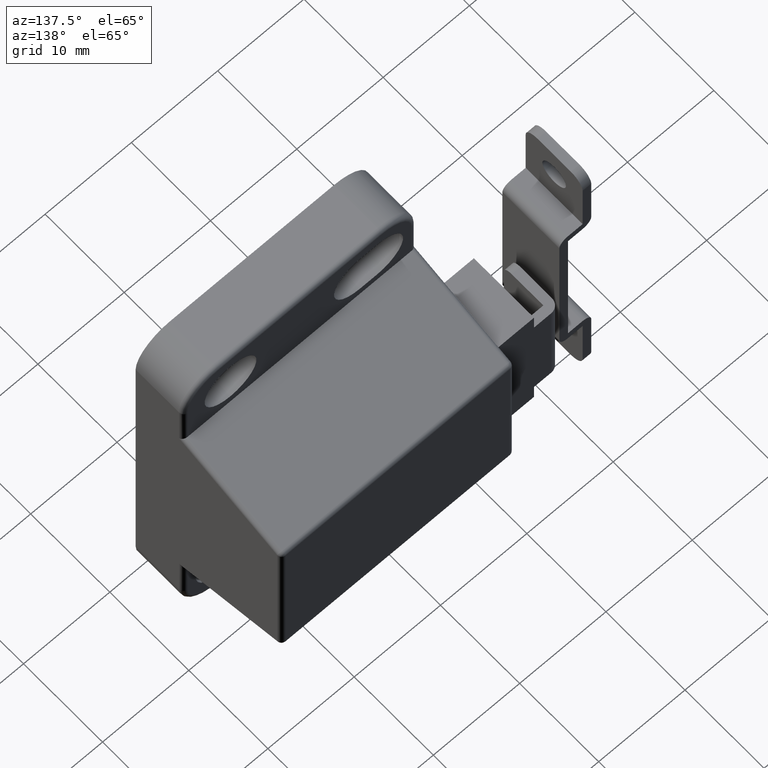
[diagram: clean part render]
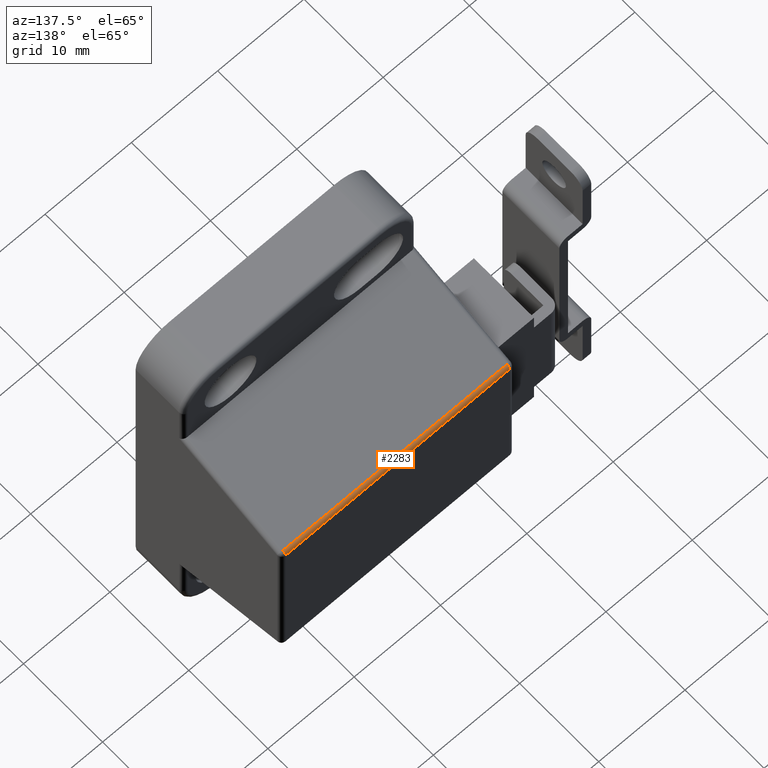
[diagram: same view with one face highlighted and labeled with its STEP entity id]
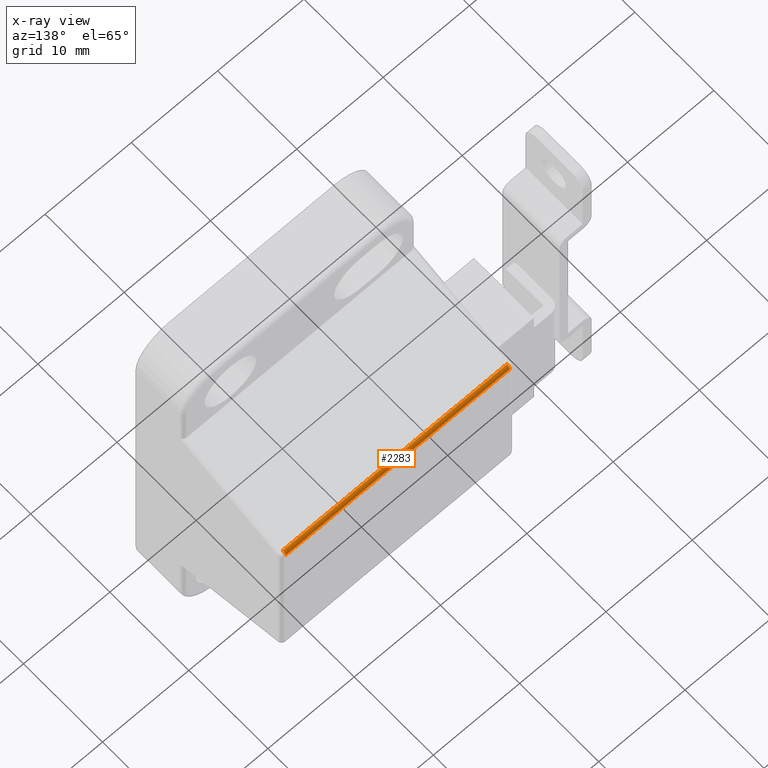
[diagram: x-ray of the same camera — body ghosted, the highlighted face saturated]
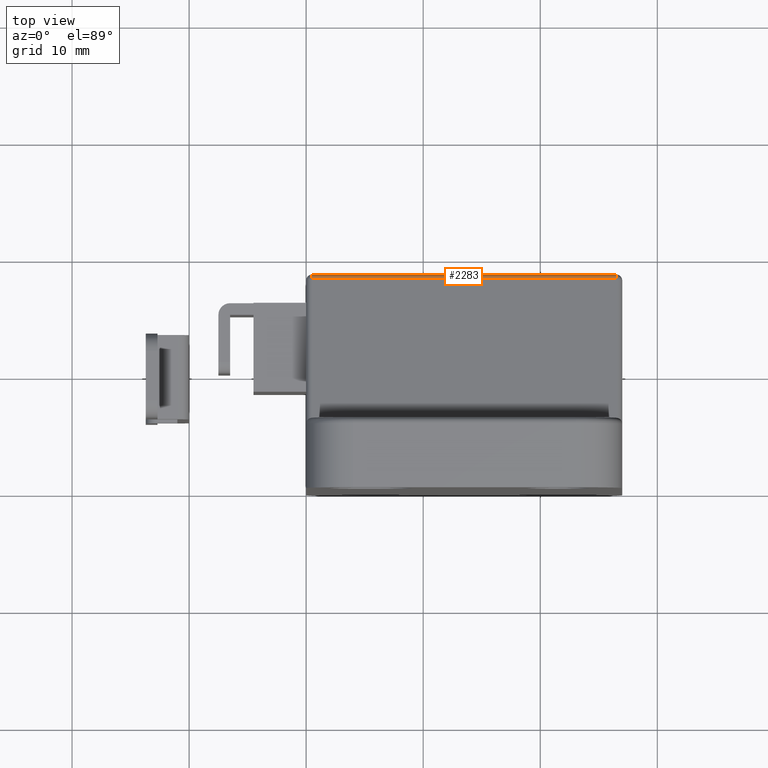
[diagram: same view with one face highlighted and labeled with its STEP entity id]
A machine part, auxiliary view. The second image highlights one B-rep face of the part: STEP entity #2283.
The next image is the same camera in x-ray: the body ghosted, the highlighted face saturated — about 0% of this face is hidden behind the body in this view.
A second angle (top view) of the same face is appended — the face is thin or edge-on in the first view.
In plain terms, the highlighted cylindrical surface (edge-blend (fillet) strip) has radius 0.5 mm, axis along (1, 0, 0).
Its self-contained STEP definition (entity closure, byte-faithful):
#192=LINE('',#3468,#419);
#193=LINE('',#3469,#420);
#419=VECTOR('',#2761,26.);
#420=VECTOR('',#2762,26.);
#636=CYLINDRICAL_SURFACE('',#2451,0.5);
#691=FACE_OUTER_BOUND('',#829,.T.);
#829=EDGE_LOOP('',(#1673,#1674,#1675,#1676));
#982=CIRCLE('',#2414,0.499999999999998);
#983=CIRCLE('',#2418,0.5);
#1075=VERTEX_POINT('',#3381);
#1076=VERTEX_POINT('',#3383);
#1079=VERTEX_POINT('',#3393);
#1080=VERTEX_POINT('',#3394);
#1290=EDGE_CURVE('',#1075,#1076,#982,.F.);
#1294=EDGE_CURVE('',#1079,#1080,#983,.F.);
#1332=EDGE_CURVE('',#1080,#1075,#192,.T.);
#1333=EDGE_CURVE('',#1076,#1079,#193,.T.);
#1673=ORIENTED_EDGE('',*,*,#1294,.T.);
#1674=ORIENTED_EDGE('',*,*,#1332,.T.);
#1675=ORIENTED_EDGE('',*,*,#1290,.T.);
#1676=ORIENTED_EDGE('',*,*,#1333,.T.);
#2283=ADVANCED_FACE('',(#691),#636,.T.);
#2414=AXIS2_PLACEMENT_3D('',#3385,#2665,#2666);
#2418=AXIS2_PLACEMENT_3D('',#3395,#2675,#2676);
#2451=AXIS2_PLACEMENT_3D('',#3467,#2759,#2760);
#2665=DIRECTION('center_axis',(0.,0.,1.));
#2666=DIRECTION('ref_axis',(0.,1.,0.));
#2675=DIRECTION('center_axis',(2.86509167645202E-15,-8.88178419700128E-15,
-1.));
#2676=DIRECTION('ref_axis',(0.951708617760551,0.307002779922758,-1.97215226305253E-30));
#2759=DIRECTION('center_axis',(0.,0.,-1.));
#2760=DIRECTION('ref_axis',(0.588641325459421,0.808394328259035,0.));
#2761=DIRECTION('',(0.,0.,1.));
#2762=DIRECTION('',(0.,0.,-1.));
#3381=CARTESIAN_POINT('',(8.63591943629348,18.4,-0.5));
#3383=CARTESIAN_POINT('',(9.11177374517376,18.0535013899614,-0.5));
#3385=CARTESIAN_POINT('Origin',(8.63591943629348,17.9,-0.5));
#3393=CARTESIAN_POINT('',(9.11177374517376,18.0535013899614,-26.5));
#3394=CARTESIAN_POINT('',(8.63591943629348,18.4,-26.5));
#3395=CARTESIAN_POINT('Origin',(8.63591943629348,17.9,-26.5));
#3467=CARTESIAN_POINT('Origin',(8.63591943629348,17.9,0.));
#3468=CARTESIAN_POINT('',(8.63591943629348,18.4,0.));
#3469=CARTESIAN_POINT('',(9.11177374517376,18.0535013899614,0.));